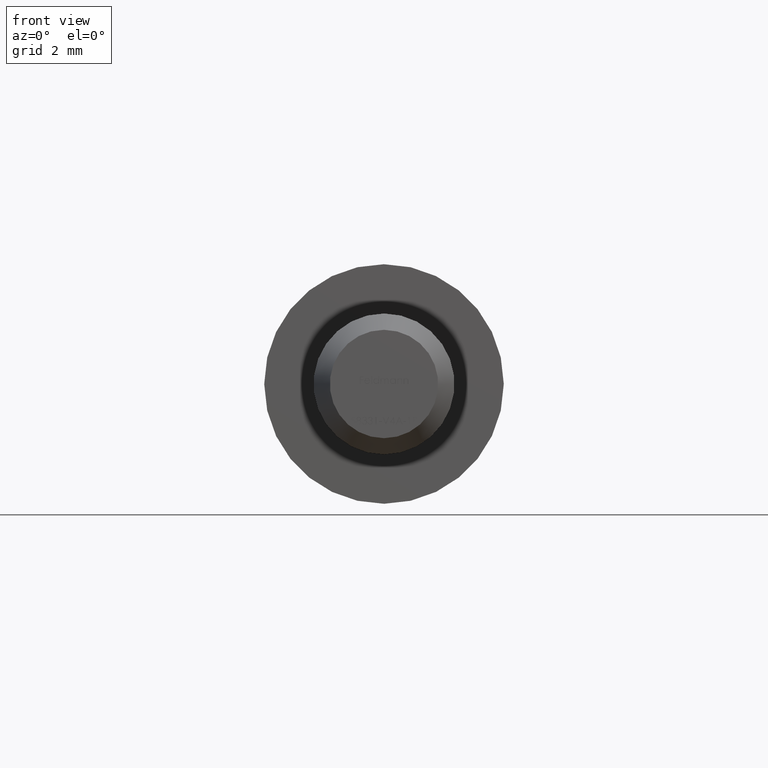
[diagram: clean part render]
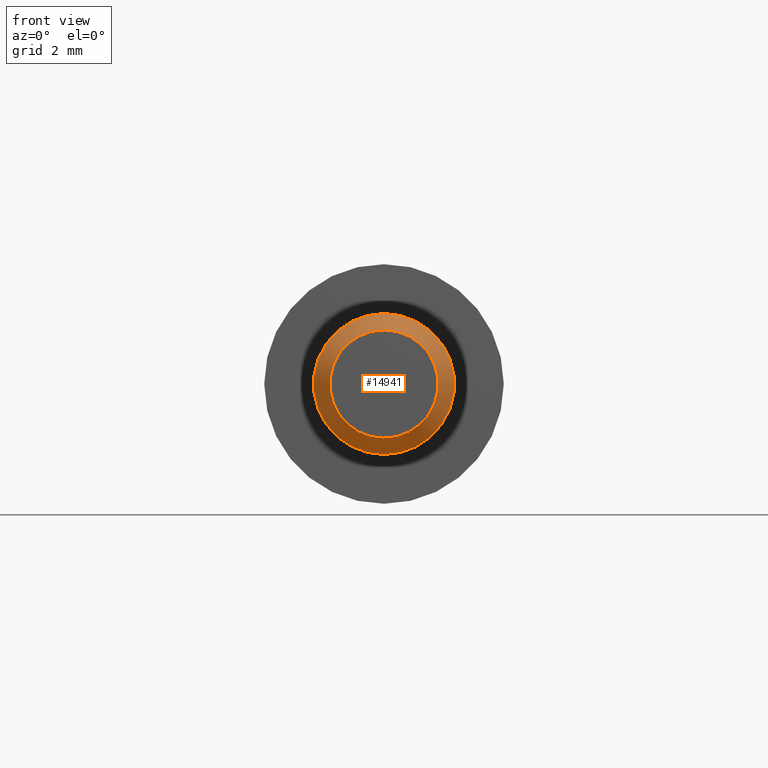
[diagram: same view with one face highlighted and labeled with its STEP entity id]
A machine part, front view. The second image highlights one B-rep face of the part: STEP entity #14941.
In plain terms, the highlighted conical surface has half-angle 30 deg.
Its self-contained STEP definition (entity closure, byte-faithful):
#40 = DIRECTION ( 'NONE',  ( 0.0000000000000000000, 0.0000000000000000000, -1.000000000000000000 ) ) ;
#1731 = DIRECTION ( 'NONE',  ( 0.0000000000000000000, -1.000000000000000000, 0.0000000000000000000 ) ) ;
#2018 = CARTESIAN_POINT ( 'NONE',  ( 0.0000000000000000000, -16.99999999999999300, -2.500000000000000000 ) ) ;
#3031 = EDGE_CURVE ( 'NONE', #11586, #11586, #8555, .T. ) ;
#3457 = AXIS2_PLACEMENT_3D ( 'NONE', #6460, #1731, #12255 ) ;
#4481 = CARTESIAN_POINT ( 'NONE',  ( 0.0000000000000000000, -16.99999999999999300, 0.0000000000000000000 ) ) ;
#4576 = EDGE_LOOP ( 'NONE', ( #13932 ) ) ;
#4922 = CONICAL_SURFACE ( 'NONE', #8995, 1.922649730810374300, 0.5235987755982970400 ) ;
#5307 = AXIS2_PLACEMENT_3D ( 'NONE', #4481, #6947, #40 ) ;
#5903 = ORIENTED_EDGE ( 'NONE', *, *, #3031, .F. ) ;
#6460 = CARTESIAN_POINT ( 'NONE',  ( 0.0000000000000000000, -18.00000000000000000, 0.0000000000000000000 ) ) ;
#6502 = EDGE_CURVE ( 'NONE', #7750, #7750, #14287, .T. ) ;
#6947 = DIRECTION ( 'NONE',  ( 0.0000000000000000000, 1.000000000000000000, 0.0000000000000000000 ) ) ;
#7750 = VERTEX_POINT ( 'NONE', #2018 ) ;
#7923 = CARTESIAN_POINT ( 'NONE',  ( 0.0000000000000000000, -18.00000000000000000, 0.0000000000000000000 ) ) ;
#8555 = CIRCLE ( 'NONE', #3457, 1.922649730810374300 ) ;
#8977 = DIRECTION ( 'NONE',  ( 0.0000000000000000000, 1.000000000000000000, 0.0000000000000000000 ) ) ;
#8995 = AXIS2_PLACEMENT_3D ( 'NONE', #7923, #8977, #11358 ) ;
#10087 = CARTESIAN_POINT ( 'NONE',  ( 0.0000000000000000000, -18.00000000000000000, -1.922649730810374300 ) ) ;
#11029 = FACE_OUTER_BOUND ( 'NONE', #4576, .T. ) ;
#11358 = DIRECTION ( 'NONE',  ( 0.0000000000000000000, 0.0000000000000000000, 1.000000000000000000 ) ) ;
#11586 = VERTEX_POINT ( 'NONE', #10087 ) ;
#12255 = DIRECTION ( 'NONE',  ( 0.0000000000000000000, 0.0000000000000000000, -1.000000000000000000 ) ) ;
#12971 = EDGE_LOOP ( 'NONE', ( #5903 ) ) ;
#13932 = ORIENTED_EDGE ( 'NONE', *, *, #6502, .F. ) ;
#14287 = CIRCLE ( 'NONE', #5307, 2.500000000000000000 ) ;
#14637 = FACE_BOUND ( 'NONE', #12971, .T. ) ;
#14941 = ADVANCED_FACE ( 'NONE', ( #11029, #14637 ), #4922, .T. ) ;